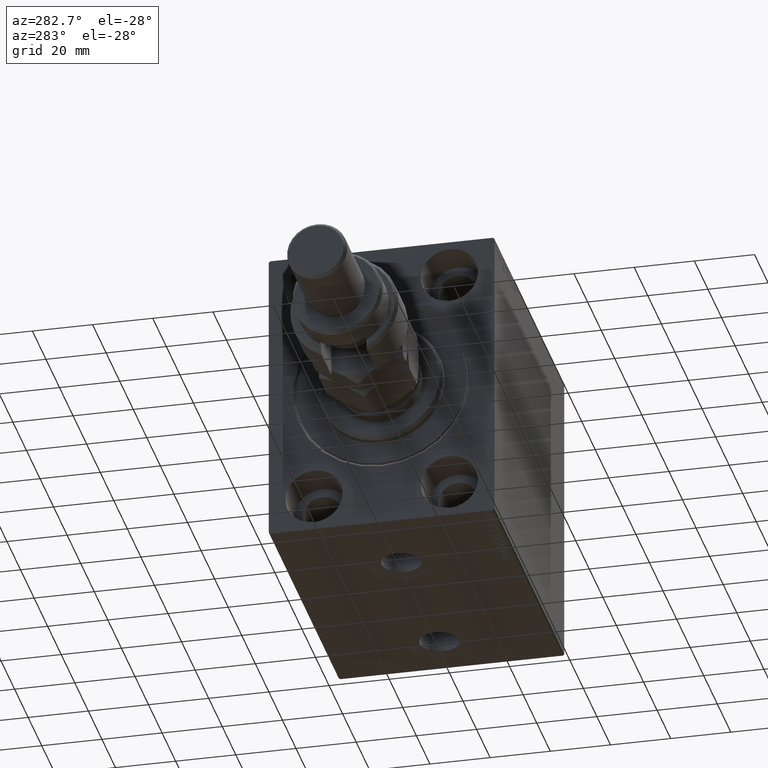
[diagram: clean part render]
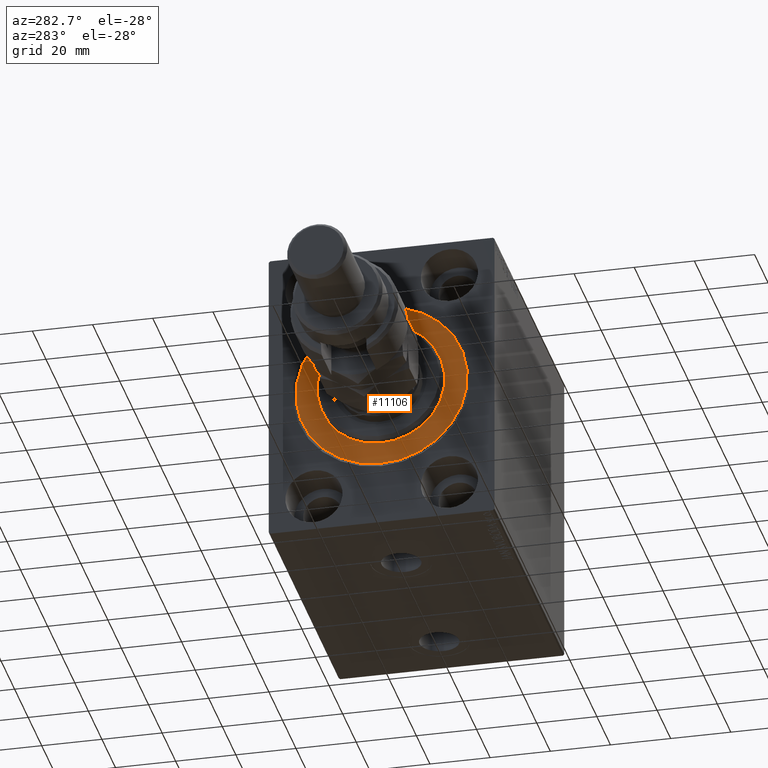
[diagram: same view with one face highlighted and labeled with its STEP entity id]
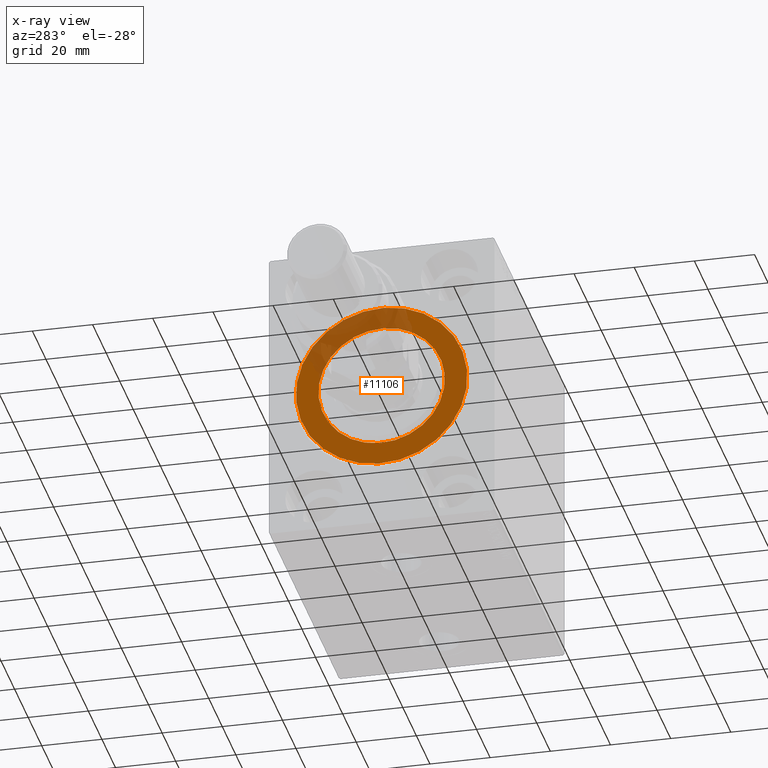
[diagram: x-ray of the same camera — body ghosted, the highlighted face saturated]
A machine part, auxiliary view. The second image highlights one B-rep face of the part: STEP entity #11106.
The next image is the same camera in x-ray: the body ghosted, the highlighted face saturated — about 25% of this face is hidden behind the body in this view.
In plain terms, the highlighted planar face has unit normal (1, 0, -0).
Its self-contained STEP definition (entity closure, byte-faithful):
#167 = DIRECTION ( 'NONE',  ( 1.000000000000000000, -0.000000000000000000, 0.000000000000000000 ) ) ;
#245 = CARTESIAN_POINT ( 'NONE',  ( 0.000000000000000000, 0.000000000000000000, 0.000000000000000000 ) ) ;
#399 = EDGE_LOOP ( 'NONE', ( #4367, #1440 ) ) ;
#711 = VERTEX_POINT ( 'NONE', #29288 ) ;
#879 = DIRECTION ( 'NONE',  ( -1.000000000000000000, 0.000000000000000000, 0.000000000000000000 ) ) ;
#1440 = ORIENTED_EDGE ( 'NONE', *, *, #29855, .F. ) ;
#1471 = CIRCLE ( 'NONE', #34189, 21.00000000000000000 ) ;
#1778 = AXIS2_PLACEMENT_3D ( 'NONE', #37884, #879, #4049 ) ;
#3959 = ORIENTED_EDGE ( 'NONE', *, *, #44718, .F. ) ;
#4049 = DIRECTION ( 'NONE',  ( 0.000000000000000000, 0.000000000000000000, 1.000000000000000000 ) ) ;
#4065 = CARTESIAN_POINT ( 'NONE',  ( 0.000000000000000000, 0.000000000000000000, 0.000000000000000000 ) ) ;
#4367 = ORIENTED_EDGE ( 'NONE', *, *, #29297, .F. ) ;
#5676 = AXIS2_PLACEMENT_3D ( 'NONE', #5839, #17270, #32125 ) ;
#5760 = CARTESIAN_POINT ( 'NONE',  ( 0.000000000000000000, 0.000000000000000000, 21.00000000000000000 ) ) ;
#5839 = CARTESIAN_POINT ( 'NONE',  ( 0.000000000000000000, 0.000000000000000000, 0.000000000000000000 ) ) ;
#5967 = DIRECTION ( 'NONE',  ( 0.000000000000000000, 0.000000000000000000, 1.000000000000000000 ) ) ;
#7305 = DIRECTION ( 'NONE',  ( 1.000000000000000000, -0.000000000000000000, 0.000000000000000000 ) ) ;
#11054 = CARTESIAN_POINT ( 'NONE',  ( 0.000000000000000000, 2.571758278209441661E-15, -21.00000000000000000 ) ) ;
#11106 = ADVANCED_FACE ( 'NONE', ( #14855, #29697 ), #44560, .F. ) ;
#11201 = DIRECTION ( 'NONE',  ( -1.000000000000000000, 0.000000000000000000, 0.000000000000000000 ) ) ;
#11242 = VERTEX_POINT ( 'NONE', #11054 ) ;
#11445 = DIRECTION ( 'NONE',  ( 0.000000000000000000, 0.000000000000000000, -1.000000000000000000 ) ) ;
#14855 = FACE_BOUND ( 'NONE', #37343, .T. ) ;
#16168 = EDGE_CURVE ( 'NONE', #11242, #33639, #1471, .T. ) ;
#17270 = DIRECTION ( 'NONE',  ( -1.000000000000000000, 0.000000000000000000, 0.000000000000000000 ) ) ;
#18015 = ORIENTED_EDGE ( 'NONE', *, *, #16168, .F. ) ;
#18861 = CIRCLE ( 'NONE', #40641, 21.00000000000000000 ) ;
#18923 = CIRCLE ( 'NONE', #5676, 28.50000000000000000 ) ;
#22167 = CARTESIAN_POINT ( 'NONE',  ( 0.000000000000000000, 0.000000000000000000, 0.000000000000000000 ) ) ;
#23052 = DIRECTION ( 'NONE',  ( 0.000000000000000000, 0.000000000000000000, -1.000000000000000000 ) ) ;
#29288 = CARTESIAN_POINT ( 'NONE',  ( 0.000000000000000000, 3.490243377569956456E-15, 28.50000000000000000 ) ) ;
#29297 = EDGE_CURVE ( 'NONE', #47803, #711, #18923, .T. ) ;
#29697 = FACE_OUTER_BOUND ( 'NONE', #399, .T. ) ;
#29855 = EDGE_CURVE ( 'NONE', #711, #47803, #38355, .T. ) ;
#32125 = DIRECTION ( 'NONE',  ( 0.000000000000000000, 0.000000000000000000, 1.000000000000000000 ) ) ;
#32444 = AXIS2_PLACEMENT_3D ( 'NONE', #245, #11201, #5967 ) ;
#33639 = VERTEX_POINT ( 'NONE', #5760 ) ;
#34189 = AXIS2_PLACEMENT_3D ( 'NONE', #4065, #167, #23052 ) ;
#37343 = EDGE_LOOP ( 'NONE', ( #3959, #18015 ) ) ;
#37884 = CARTESIAN_POINT ( 'NONE',  ( 0.000000000000000000, 0.000000000000000000, 0.000000000000000000 ) ) ;
#38355 = CIRCLE ( 'NONE', #1778, 28.50000000000000000 ) ;
#40641 = AXIS2_PLACEMENT_3D ( 'NONE', #22167, #7305, #11445 ) ;
#44560 = PLANE ( 'NONE',  #32444 ) ;
#44718 = EDGE_CURVE ( 'NONE', #33639, #11242, #18861, .T. ) ;
#45286 = CARTESIAN_POINT ( 'NONE',  ( 0.000000000000000000, 0.000000000000000000, -28.50000000000000000 ) ) ;
#47803 = VERTEX_POINT ( 'NONE', #45286 ) ;